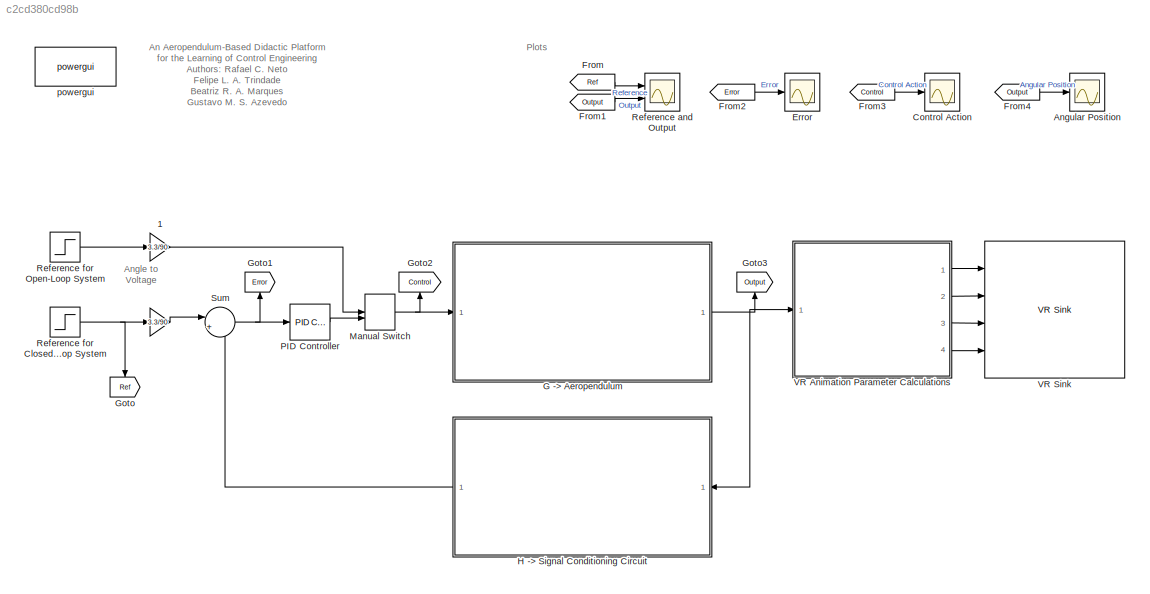
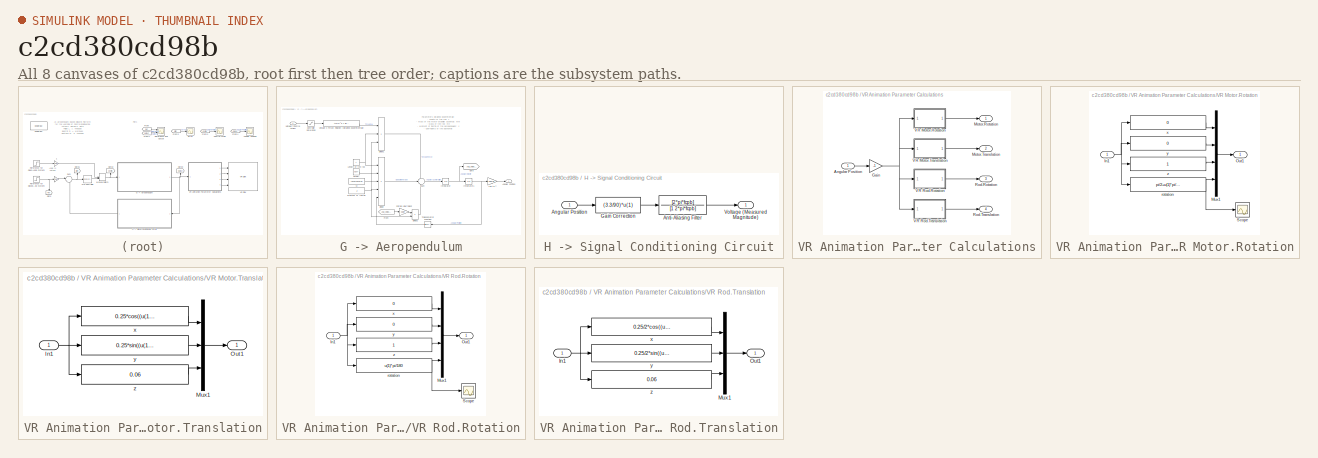
[diagram: thumbnail index - all 8 canvases of the model, root first then tree order]
MODEL slx_c2cd380cd98b
KIND model
CONFIG AbsTol = auto
CONFIG EnableMultiTasking = off
CONFIG FixedStep = 1e-3
CONFIG InitFcn = mm = (0.008+0.0004+0.0034+2*0.0024);\nmh = 0.007;\nr = 0.012;\nL = 0.285;\nJ = (mh*L^2)/3 + (2*mm*r^2)/5 + mm*(L+r)^2;\n\n\n% where: mm = mass of the motor-propeller assembly\n%            mh  = mass of the rod\n\ncoef = 0.0074;\n\nA = -3.8099e-3;\nB = 39.1002e-3;\nC =  3.1245e-3;\nD =  0;\n\nfcpb = 2000; 
CONFIG MaxStep = 1e-3
CONFIG MinStep = auto
CONFIG RelTol = 1e-3
CONFIG SampleTimeConstraint = Unconstrained
CONFIG Solver = VariableStepAuto
CONFIG SolverName = VariableStepAuto
CONFIG StartTime = 0.0
CONFIG StopTime = 5
BLOCK [Gain]  
  Gain = 3.3/90
  OutDataTypeStr = Inherit: Inherit via internal rule
  ParamDataTypeStr = Inherit: Inherit via internal rule
  SaturateOnIntegerOverflow = off
BLOCK [Gain]  1
  Gain = 3.3/90
  OutDataTypeStr = Inherit: Inherit via internal rule
  ParamDataTypeStr = Inherit: Inherit via internal rule
  SaturateOnIntegerOverflow = off
BLOCK [Scope] Angular Position
  Floating = off
  NumInputPorts = 1
  Ports = [1]
  ScopeSpecificationString = Simulink.scopes.TimeScopeBlockCfg('CurrentConfiguration', extmgr.ConfigurationSet(extmgr.Configuration('Core','General UI',true,'FigureColor',[1 1 1]),extmgr.Configuration('Core','Source UI',true),extmgr.Configuration('Sources','WiredSimulink',true,'DataLoggingVariableName','SimulationData','DataLoggingSaveFormat','StructureWithTime'),extmgr.Configuration('Visuals','Time Domain',true,'SerializedDi...<+2462ch>
BLOCK [Scope] Control Action
  Floating = off
  NumInputPorts = 1
  Ports = [1]
  ScopeSpecificationString = Simulink.scopes.TimeScopeBlockCfg('CurrentConfiguration', extmgr.ConfigurationSet(extmgr.Configuration('Core','General UI',true,'FigureColor',[1 1 1]),extmgr.Configuration('Core','Source UI',true),extmgr.Configuration('Sources','WiredSimulink',true,'DataLoggingVariableName','ScopeData1'),extmgr.Configuration('Visuals','Time Domain',true,'SerializedDisplays',{struct('MinYLimReal','-0.28109','MaxYLi...<+1617ch>
BLOCK [Scope] Error
  Floating = off
  NumInputPorts = 1
  Ports = [1]
  ScopeSpecificationString = Simulink.scopes.TimeScopeBlockCfg('CurrentConfiguration', extmgr.ConfigurationSet(extmgr.Configuration('Core','General UI',true,'FigureColor',[1 1 1]),extmgr.Configuration('Core','Source UI',true),extmgr.Configuration('Sources','WiredSimulink',true,'DataLoggingVariableName','ScopeData2'),extmgr.Configuration('Visuals','Time Domain',true,'SerializedDisplays',{struct('MinYLimReal','-0.25208','MaxYLi...<+1637ch>
BLOCK [From] From
  GotoTag = Ref
BLOCK [From] From1
  GotoTag = Output
BLOCK [From] From2
  GotoTag = Error
BLOCK [From] From3
  GotoTag = Control
BLOCK [From] From4
  GotoTag = Output
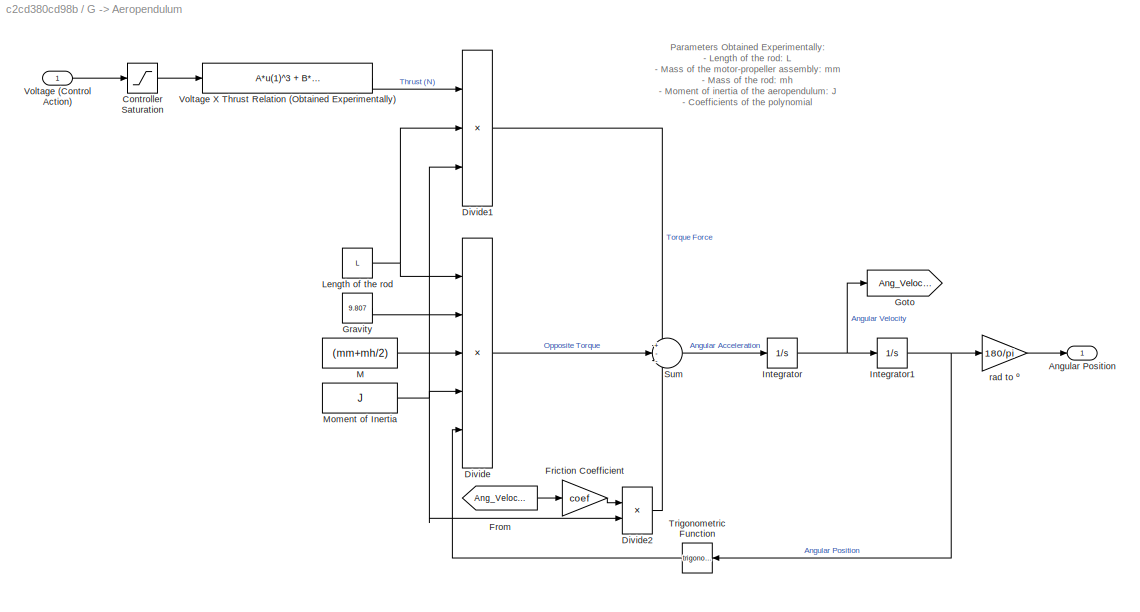
BLOCK [SubSystem] G -> Aeropendulum
  InitFcn = mm = (8+0.4+3.4+2*2.4)/1000  ; % motor + helice + parafusos + acrilico\nmh = 0.007;\nr = 0.03;\nl = 0.25;\nJ = (mh*l^2/2) + (2*mm*r^2)/5 + mm*l^2;
  Ports = [1, 1]
  RequestExecContextInheritance = off
BLOCK [Gain] G -> Aeropendulum/ Friction Coefficient
  Gain = coef
  OutDataTypeStr = Inherit: Inherit via internal rule
  ParamDataTypeStr = Inherit: Inherit via internal rule
  SaturateOnIntegerOverflow = off
BLOCK [Outport] G -> Aeropendulum/Angular Position
  IconDisplay = Port number
BLOCK [Saturate] G -> Aeropendulum/Controller Saturation
  InputPortMap = u0
  LowerLimit = 0
  Ports = [1, 1]
  UpperLimit = 3.7
BLOCK [Product] G -> Aeropendulum/Divide
  InputSameDT = off
  Inputs = ***/*
  OutDataTypeStr = Inherit: Inherit via internal rule
  Ports = [5, 1]
  RndMeth = Floor
  SaturateOnIntegerOverflow = off
BLOCK [Product] G -> Aeropendulum/Divide1
  InputSameDT = off
  Inputs = **/
  OutDataTypeStr = Inherit: Inherit via internal rule
  Ports = [3, 1]
  RndMeth = Floor
  SaturateOnIntegerOverflow = off
BLOCK [Product] G -> Aeropendulum/Divide2
  InputSameDT = off
  Inputs = */
  OutDataTypeStr = Inherit: Inherit via internal rule
  Ports = [2, 1]
  RndMeth = Floor
  SaturateOnIntegerOverflow = off
BLOCK [From] G -> Aeropendulum/From
  GotoTag = Ang_Velocity
BLOCK [Goto] G -> Aeropendulum/Goto
  GotoTag = Ang_Velocity
BLOCK [Constant] G -> Aeropendulum/Gravity
  Value = 9.807
BLOCK [Integrator] G -> Aeropendulum/Integrator
  Ports = [1, 1]
BLOCK [Integrator] G -> Aeropendulum/Integrator1
  Ports = [1, 1]
BLOCK [Constant] G -> Aeropendulum/Length of the rod
  Value = L
BLOCK [Constant] G -> Aeropendulum/M
  Value = (mm+mh/2)
BLOCK [Constant] G -> Aeropendulum/Moment of Inertia
  Value = J
BLOCK [Sum] G -> Aeropendulum/Sum
  IconShape = round
  InputSameDT = off
  Inputs = +--
  OutDataTypeStr = Inherit: Inherit via internal rule
  Ports = [3, 1]
  SaturateOnIntegerOverflow = off
BLOCK [Trigonometry] G -> Aeropendulum/Trigonometric Function
  Ports = [1, 1]
BLOCK [Inport] G -> Aeropendulum/Voltage (Control Action)
  IconDisplay = Port number
BLOCK [Fcn] G -> Aeropendulum/Voltage X Thrust Relation (Obtained Experimentally)
  Expr = A*u(1)^3 + B*u(1)^2 + C*u(1) + D
BLOCK [Gain] G -> Aeropendulum/rad to º
  Gain = 180/pi
  OutDataTypeStr = Inherit: Inherit via internal rule
  ParamDataTypeStr = Inherit: Inherit via internal rule
  SaturateOnIntegerOverflow = off
BLOCK [Goto] Goto
  GotoTag = Ref
BLOCK [Goto] Goto1
  GotoTag = Error
BLOCK [Goto] Goto2
  GotoTag = Control
BLOCK [Goto] Goto3
  GotoTag = Output
BLOCK [SubSystem] H -> Signal Conditioning Circuit
  Ports = [1, 1]
  RequestExecContextInheritance = off
BLOCK [Inport] H -> Signal Conditioning Circuit/Angular Position
  IconDisplay = Port number
BLOCK [TransferFcn] H -> Signal Conditioning Circuit/Anti-Aliasing Filter
  Denominator = [1 2*pi*fcpb]
  Numerator = [2*pi*fcpb]
BLOCK [Fcn] H -> Signal Conditioning Circuit/Gain Correction
  Expr = (3.3/90)*u(1)
BLOCK [Outport] H -> Signal Conditioning Circuit/Voltage (Measured Magnitude)
  IconDisplay = Port number
BLOCK [ManualSwitch] Manual Switch
BLOCK [Reference] PID Controller  REF=simulink/Continuous/PID Controller
  Ports = [1, 1]
  SourceBlock = simulink/Continuous/PID Controller
  SourceProductBaseCode = SL
  SourceProductName = Simulink
  SourceType = PID 1dof
BLOCK [Scope] Reference and Output
  Floating = off
  NumInputPorts = 2
  Ports = [2]
  ScopeSpecificationString = Simulink.scopes.TimeScopeBlockCfg('CurrentConfiguration', extmgr.ConfigurationSet(extmgr.Configuration('Core','General UI',true,'FigureColor',[1 1 1]),extmgr.Configuration('Core','Source UI',true),extmgr.Configuration('Sources','WiredSimulink',true,'DataLoggingVariableName','ScopeData1'),extmgr.Configuration('Visuals','Time Domain',true,'SerializedDisplays',{struct('MinYLimReal','-6.875','MaxYLimR...<+1689ch>
BLOCK [Step] Reference for Closed-Loop System
  After = 55
  SampleTime = 0
BLOCK [Step] Reference for Open-Loop System
  After = 55
  SampleTime = 0
BLOCK [Sum] Sum
  IconShape = round
  InputSameDT = off
  Inputs = |+-
  OutDataTypeStr = Inherit: Inherit via internal rule
  Ports = [2, 1]
  SaturateOnIntegerOverflow = off
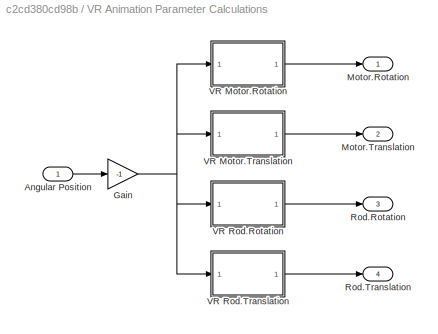
BLOCK [SubSystem] VR Animation Parameter Calculations
  Ports = [1, 4]
  RequestExecContextInheritance = off
BLOCK [Inport] VR Animation Parameter Calculations/Angular Position
  IconDisplay = Port number
BLOCK [Gain] VR Animation Parameter Calculations/Gain
  Gain = -1
  OutDataTypeStr = Inherit: Inherit via internal rule
  ParamDataTypeStr = Inherit: Inherit via internal rule
  SaturateOnIntegerOverflow = off
BLOCK [Outport] VR Animation Parameter Calculations/Motor.Rotation
  IconDisplay = Port number
BLOCK [Outport] VR Animation Parameter Calculations/Motor.Translation
  IconDisplay = Port number
  Port = 2
BLOCK [Outport] VR Animation Parameter Calculations/Rod.Rotation
  IconDisplay = Port number
  Port = 3
BLOCK [Outport] VR Animation Parameter Calculations/Rod.Translation
  IconDisplay = Port number
  Port = 4
BLOCK [SubSystem] VR Animation Parameter Calculations/VR Motor.Rotation
  Ports = [1, 1]
  RequestExecContextInheritance = off
BLOCK [Inport] VR Animation Parameter Calculations/VR Motor.Rotation/In1
  IconDisplay = Port number
BLOCK [Mux] VR Animation Parameter Calculations/VR Motor.Rotation/Mux1
  DisplayOption = bar
  Ports = [4, 1]
BLOCK [Outport] VR Animation Parameter Calculations/VR Motor.Rotation/Out1
  IconDisplay = Port number
BLOCK [Scope] VR Animation Parameter Calculations/VR Motor.Rotation/Scope
  Floating = off
  NumInputPorts = 1
  Ports = [1]
  ScopeSpecificationString = Simulink.scopes.TimeScopeBlockCfg('CurrentConfiguration', extmgr.ConfigurationSet(extmgr.Configuration('Core','General UI',true),extmgr.Configuration('Core','Source UI',true),extmgr.Configuration('Sources','WiredSimulink',true,'DataLoggingVariableName','ScopeData1'),extmgr.Configuration('Visuals','Time Domain',true,'SerializedDisplays',{struct('MinYLimReal','1.50123','MaxYLimReal','2.18828','YLabe...<+1365ch>
BLOCK [Fcn] VR Animation Parameter Calculations/VR Motor.Rotation/rotation
  Expr = pi/2+u(1)*pi/180
BLOCK [Fcn] VR Animation Parameter Calculations/VR Motor.Rotation/x
  Expr = 0
BLOCK [Fcn] VR Animation Parameter Calculations/VR Motor.Rotation/y
  Expr = 0
BLOCK [Fcn] VR Animation Parameter Calculations/VR Motor.Rotation/z
  Expr = 1
BLOCK [SubSystem] VR Animation Parameter Calculations/VR Motor.Translation
  Ports = [1, 1]
  RequestExecContextInheritance = off
BLOCK [Inport] VR Animation Parameter Calculations/VR Motor.Translation/In1
  IconDisplay = Port number
BLOCK [Mux] VR Animation Parameter Calculations/VR Motor.Translation/Mux1
  DisplayOption = bar
  Inputs = 3
  Ports = [3, 1]
BLOCK [Outport] VR Animation Parameter Calculations/VR Motor.Translation/Out1
  IconDisplay = Port number
BLOCK [Fcn] VR Animation Parameter Calculations/VR Motor.Translation/x
  Expr = 0.25*cos((u(1)+270)*pi/180)
BLOCK [Fcn] VR Animation Parameter Calculations/VR Motor.Translation/y
  Expr = 0.25*sin((u(1)+270)*pi/180)+0.275
BLOCK [Fcn] VR Animation Parameter Calculations/VR Motor.Translation/z
  Expr = 0.06
BLOCK [SubSystem] VR Animation Parameter Calculations/VR Rod.Rotation
  Ports = [1, 1]
  RequestExecContextInheritance = off
BLOCK [Inport] VR Animation Parameter Calculations/VR Rod.Rotation/In1
  IconDisplay = Port number
BLOCK [Mux] VR Animation Parameter Calculations/VR Rod.Rotation/Mux1
  DisplayOption = bar
  Ports = [4, 1]
BLOCK [Outport] VR Animation Parameter Calculations/VR Rod.Rotation/Out1
  IconDisplay = Port number
BLOCK [Scope] VR Animation Parameter Calculations/VR Rod.Rotation/Scope
  Floating = off
  NumInputPorts = 1
  Ports = [1]
  ScopeSpecificationString = Simulink.scopes.TimeScopeBlockCfg('CurrentConfiguration', extmgr.ConfigurationSet(extmgr.Configuration('Core','General UI',true),extmgr.Configuration('Core','Source UI',true),extmgr.Configuration('Sources','WiredSimulink',true,'DataLoggingVariableName','ScopeData1'),extmgr.Configuration('Visuals','Time Domain',true,'SerializedDisplays',{struct('MinYLimReal','1.5355','MaxYLimReal','1.88251','YLabel...<+1361ch>
BLOCK [Fcn] VR Animation Parameter Calculations/VR Rod.Rotation/rotation
  Expr = u(1)*pi/180
BLOCK [Fcn] VR Animation Parameter Calculations/VR Rod.Rotation/x
  Expr = 0
BLOCK [Fcn] VR Animation Parameter Calculations/VR Rod.Rotation/y
  Expr = 0
BLOCK [Fcn] VR Animation Parameter Calculations/VR Rod.Rotation/z
  Expr = 1
BLOCK [SubSystem] VR Animation Parameter Calculations/VR Rod.Translation
  Ports = [1, 1]
  RequestExecContextInheritance = off
BLOCK [Inport] VR Animation Parameter Calculations/VR Rod.Translation/In1
  IconDisplay = Port number
BLOCK [Mux] VR Animation Parameter Calculations/VR Rod.Translation/Mux1
  DisplayOption = bar
  Inputs = 3
  Ports = [3, 1]
BLOCK [Outport] VR Animation Parameter Calculations/VR Rod.Translation/Out1
  IconDisplay = Port number
BLOCK [Fcn] VR Animation Parameter Calculations/VR Rod.Translation/x
  Expr = 0.25/2*cos((u(1)+270)*pi/180)
BLOCK [Fcn] VR Animation Parameter Calculations/VR Rod.Translation/y
  Expr = 0.25/2*sin((u(1)+270)*pi/180)+0.25+0.025
BLOCK [Fcn] VR Animation Parameter Calculations/VR Rod.Translation/z
  Expr = 0.06
BLOCK [Reference] VR Sink  REF=vrlib/VR Sink
  InstantiateOnLoad = on
  Ports = [4]
  SourceBlock = vrlib/VR Sink
  SourceProductBaseCode = SL
  SourceProductName = Simulink
  SourceType = Virtual Reality Sink
BLOCK [Reference] powergui  REF=powerlib/powergui
  Ports = []
  Priority = 1
  SourceBlock = powerlib/powergui
  SourceProductBaseCode = PS
  SourceProductName = Simscape Power Systems
  SourceType = PSB option menu block
ANNOTATION (root): Angle to Voltage
ANNOTATION (root): An Aeropendulum-Based Didactic Platform for the Learning of Control Engineering Authors: Rafael C. Neto Felipe L. A. Trindade Beatriz R. A. Marques Gustavo M. S. Azevedo Eduardo J. Barbosa Eduardo A. O. Barbosa
ANNOTATION (root): Plots
ANNOTATION G -> Aeropendulum: Parameters Obtained Experimentally: - Length of the rod: L - Mass of the motor-propeller assembly: mm - Mass of the rod: mh - Moment of inertia of the aeropendulum: J - Coefficients of the polynomial representation of F(V): A , B , C e D Parameters Obtained Through Manual Tuning: - Friction coefficient: coef
LINE  1:1 -> Manual Switch:1
LINE  :1 -> Sum:1
LINE From1:1 -> Reference and Output:2
LINE From2:1 -> Error:1
LINE From3:1 -> Control Action:1
LINE From4:1 -> Angular Position:1
LINE From:1 -> Reference and Output:1
LINE G -> Aeropendulum/ Friction Coefficient:1 -> G -> Aeropendulum/Divide2:1
LINE G -> Aeropendulum/Controller Saturation:1 -> G -> Aeropendulum/Voltage X Thrust Relation (Obtained Experimentally):1
LINE G -> Aeropendulum/Divide1:1 -> G -> Aeropendulum/Sum:1
LINE G -> Aeropendulum/Divide2:1 -> G -> Aeropendulum/Sum:3
LINE G -> Aeropendulum/Divide:1 -> G -> Aeropendulum/Sum:2
LINE G -> Aeropendulum/From:1 -> G -> Aeropendulum/ Friction Coefficient:1
LINE G -> Aeropendulum/Gravity:1 -> G -> Aeropendulum/Divide:2
NET G -> Aeropendulum/Integrator1:1 -> G -> Aeropendulum/Trigonometric Function:1, G -> Aeropendulum/rad to º:1
NET G -> Aeropendulum/Integrator:1 -> G -> Aeropendulum/Goto:1, G -> Aeropendulum/Integrator1:1
NET G -> Aeropendulum/Length of the rod:1 -> G -> Aeropendulum/Divide1:2, G -> Aeropendulum/Divide:1
LINE G -> Aeropendulum/M:1 -> G -> Aeropendulum/Divide:3
NET G -> Aeropendulum/Moment of Inertia:1 -> G -> Aeropendulum/Divide1:3, G -> Aeropendulum/Divide2:2, G -> Aeropendulum/Divide:4
LINE G -> Aeropendulum/Sum:1 -> G -> Aeropendulum/Integrator:1
LINE G -> Aeropendulum/Trigonometric Function:1 -> G -> Aeropendulum/Divide:5
LINE G -> Aeropendulum/Voltage (Control Action):1 -> G -> Aeropendulum/Controller Saturation:1
LINE G -> Aeropendulum/Voltage X Thrust Relation (Obtained Experimentally):1 -> G -> Aeropendulum/Divide1:1
LINE G -> Aeropendulum/rad to º:1 -> G -> Aeropendulum/Angular Position:1
NET G -> Aeropendulum:1 -> Goto3:1, H -> Signal Conditioning Circuit:1, VR Animation Parameter Calculations:1
LINE H -> Signal Conditioning Circuit/Angular Position:1 -> H -> Signal Conditioning Circuit/Gain Correction:1
LINE H -> Signal Conditioning Circuit/Anti-Aliasing Filter:1 -> H -> Signal Conditioning Circuit/Voltage (Measured Magnitude):1
LINE H -> Signal Conditioning Circuit/Gain Correction:1 -> H -> Signal Conditioning Circuit/Anti-Aliasing Filter:1
LINE H -> Signal Conditioning Circuit:1 -> Sum:2
NET Manual Switch:1 -> G -> Aeropendulum:1, Goto2:1
LINE PID Controller:1 -> Manual Switch:2
NET Reference for Closed-Loop System:1 ->  :1, Goto:1
LINE Reference for Open-Loop System:1 ->  1:1
NET Sum:1 -> Goto1:1, PID Controller:1
LINE VR Animation Parameter Calculations/Angular Position:1 -> VR Animation Parameter Calculations/Gain:1
NET VR Animation Parameter Calculations/Gain:1 -> VR Animation Parameter Calculations/VR Motor.Rotation:1, VR Animation Parameter Calculations/VR Motor.Translation:1, VR Animation Parameter Calculations/VR Rod.Rotation:1, VR Animation Parameter Calculations/VR Rod.Translation:1
NET VR Animation Parameter Calculations/VR Motor.Rotation/In1:1 -> VR Animation Parameter Calculations/VR Motor.Rotation/rotation:1, VR Animation Parameter Calculations/VR Motor.Rotation/x:1, VR Animation Parameter Calculations/VR Motor.Rotation/y:1, VR Animation Parameter Calculations/VR Motor.Rotation/z:1
LINE VR Animation Parameter Calculations/VR Motor.Rotation/Mux1:1 -> VR Animation Parameter Calculations/VR Motor.Rotation/Out1:1
NET VR Animation Parameter Calculations/VR Motor.Rotation/rotation:1 -> VR Animation Parameter Calculations/VR Motor.Rotation/Mux1:4, VR Animation Parameter Calculations/VR Motor.Rotation/Scope:1
LINE VR Animation Parameter Calculations/VR Motor.Rotation/x:1 -> VR Animation Parameter Calculations/VR Motor.Rotation/Mux1:1
LINE VR Animation Parameter Calculations/VR Motor.Rotation/y:1 -> VR Animation Parameter Calculations/VR Motor.Rotation/Mux1:2
LINE VR Animation Parameter Calculations/VR Motor.Rotation/z:1 -> VR Animation Parameter Calculations/VR Motor.Rotation/Mux1:3
LINE VR Animation Parameter Calculations/VR Motor.Rotation:1 -> VR Animation Parameter Calculations/Motor.Rotation:1
NET VR Animation Parameter Calculations/VR Motor.Translation/In1:1 -> VR Animation Parameter Calculations/VR Motor.Translation/x:1, VR Animation Parameter Calculations/VR Motor.Translation/y:1, VR Animation Parameter Calculations/VR Motor.Translation/z:1
LINE VR Animation Parameter Calculations/VR Motor.Translation/Mux1:1 -> VR Animation Parameter Calculations/VR Motor.Translation/Out1:1
LINE VR Animation Parameter Calculations/VR Motor.Translation/x:1 -> VR Animation Parameter Calculations/VR Motor.Translation/Mux1:1
LINE VR Animation Parameter Calculations/VR Motor.Translation/y:1 -> VR Animation Parameter Calculations/VR Motor.Translation/Mux1:2
LINE VR Animation Parameter Calculations/VR Motor.Translation/z:1 -> VR Animation Parameter Calculations/VR Motor.Translation/Mux1:3
LINE VR Animation Parameter Calculations/VR Motor.Translation:1 -> VR Animation Parameter Calculations/Motor.Translation:1
NET VR Animation Parameter Calculations/VR Rod.Rotation/In1:1 -> VR Animation Parameter Calculations/VR Rod.Rotation/rotation:1, VR Animation Parameter Calculations/VR Rod.Rotation/x:1, VR Animation Parameter Calculations/VR Rod.Rotation/y:1, VR Animation Parameter Calculations/VR Rod.Rotation/z:1
LINE VR Animation Parameter Calculations/VR Rod.Rotation/Mux1:1 -> VR Animation Parameter Calculations/VR Rod.Rotation/Out1:1
NET VR Animation Parameter Calculations/VR Rod.Rotation/rotation:1 -> VR Animation Parameter Calculations/VR Rod.Rotation/Mux1:4, VR Animation Parameter Calculations/VR Rod.Rotation/Scope:1
LINE VR Animation Parameter Calculations/VR Rod.Rotation/x:1 -> VR Animation Parameter Calculations/VR Rod.Rotation/Mux1:1
LINE VR Animation Parameter Calculations/VR Rod.Rotation/y:1 -> VR Animation Parameter Calculations/VR Rod.Rotation/Mux1:2
LINE VR Animation Parameter Calculations/VR Rod.Rotation/z:1 -> VR Animation Parameter Calculations/VR Rod.Rotation/Mux1:3
LINE VR Animation Parameter Calculations/VR Rod.Rotation:1 -> VR Animation Parameter Calculations/Rod.Rotation:1
NET VR Animation Parameter Calculations/VR Rod.Translation/In1:1 -> VR Animation Parameter Calculations/VR Rod.Translation/x:1, VR Animation Parameter Calculations/VR Rod.Translation/y:1, VR Animation Parameter Calculations/VR Rod.Translation/z:1
LINE VR Animation Parameter Calculations/VR Rod.Translation/Mux1:1 -> VR Animation Parameter Calculations/VR Rod.Translation/Out1:1
LINE VR Animation Parameter Calculations/VR Rod.Translation/x:1 -> VR Animation Parameter Calculations/VR Rod.Translation/Mux1:1
LINE VR Animation Parameter Calculations/VR Rod.Translation/y:1 -> VR Animation Parameter Calculations/VR Rod.Translation/Mux1:2
LINE VR Animation Parameter Calculations/VR Rod.Translation/z:1 -> VR Animation Parameter Calculations/VR Rod.Translation/Mux1:3
LINE VR Animation Parameter Calculations/VR Rod.Translation:1 -> VR Animation Parameter Calculations/Rod.Translation:1
LINE VR Animation Parameter Calculations:1 -> VR Sink:1
LINE VR Animation Parameter Calculations:2 -> VR Sink:2
LINE VR Animation Parameter Calculations:3 -> VR Sink:3
LINE VR Animation Parameter Calculations:4 -> VR Sink:4
note: NET lines group one-source signal fan-out (src -> all destinations, sorted); 1:1 wires keep LINE
